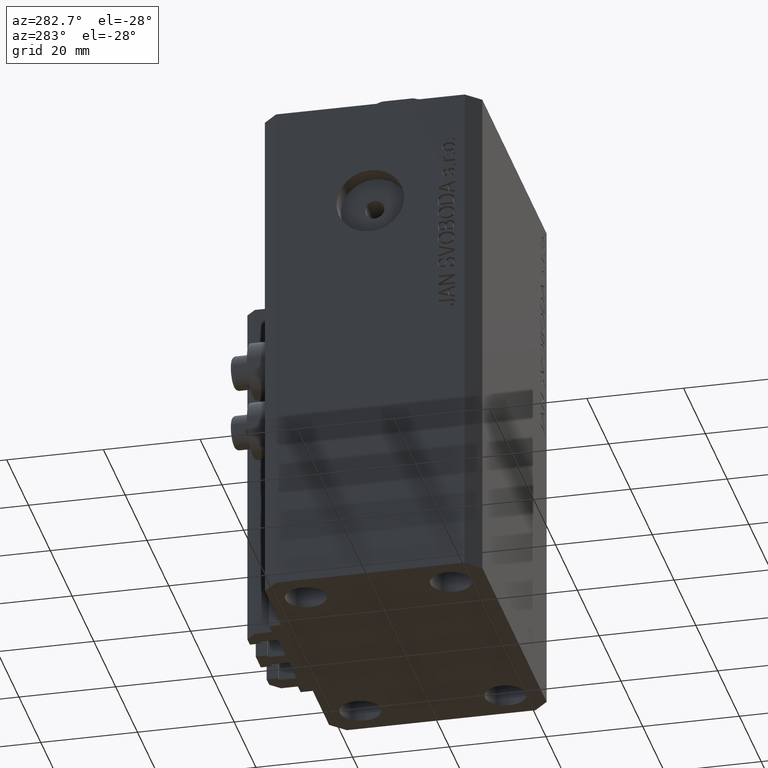
[diagram: clean part render]
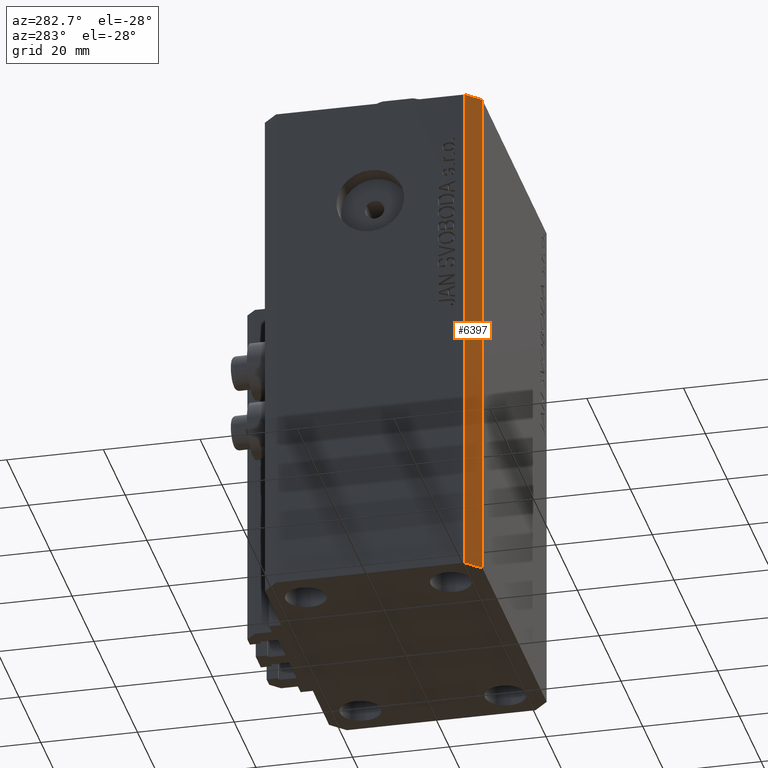
[diagram: same view with one face highlighted and labeled with its STEP entity id]
A machine part, auxiliary view. The second image highlights one B-rep face of the part: STEP entity #6397.
In plain terms, the highlighted planar face has unit normal (-0.7071, -0.7071, 0).
Its self-contained STEP definition (entity closure, byte-faithful):
#2043 = VERTEX_POINT ( 'NONE', #18155 ) ;
#3606 = VERTEX_POINT ( 'NONE', #7023 ) ;
#6008 = DIRECTION ( 'NONE',  ( 0.000000000000000000, 0.000000000000000000, 1.000000000000000000 ) ) ;
#6263 = PLANE ( 'NONE',  #13164 ) ;
#6397 = ADVANCED_FACE ( 'NONE', ( #42544 ), #6263, .T. ) ;
#7023 = CARTESIAN_POINT ( 'NONE',  ( -29.49999999999650413, -22.49999999999949907, -107.0000000000000000 ) ) ;
#7609 = VECTOR ( 'NONE', #32587, 1000.000000000000114 ) ;
#7941 = CARTESIAN_POINT ( 'NONE',  ( -32.49999999999650413, -19.49999999999949907, 0.000000000000000000 ) ) ;
#10573 = DIRECTION ( 'NONE',  ( 0.7071067811865474617, -0.7071067811865474617, 0.000000000000000000 ) ) ;
#13164 = AXIS2_PLACEMENT_3D ( 'NONE', #31810, #28230, #39444 ) ;
#13411 = CARTESIAN_POINT ( 'NONE',  ( -29.49999999999650413, -22.49999999999949907, -107.0000000000000000 ) ) ;
#13687 = ORIENTED_EDGE ( 'NONE', *, *, #45004, .F. ) ;
#18023 = LINE ( 'NONE', #35702, #7609 ) ;
#18128 = EDGE_CURVE ( 'NONE', #29222, #22956, #35725, .T. ) ;
#18155 = CARTESIAN_POINT ( 'NONE',  ( -29.49999999999650413, -22.49999999999949907, 0.000000000000000000 ) ) ;
#22956 = VERTEX_POINT ( 'NONE', #34222 ) ;
#26924 = CARTESIAN_POINT ( 'NONE',  ( -32.49999999999650413, -19.49999999999949907, -107.0000000000000000 ) ) ;
#28230 = DIRECTION ( 'NONE',  ( -0.7071067811865475727, -0.7071067811865475727, 0.000000000000000000 ) ) ;
#28863 = ORIENTED_EDGE ( 'NONE', *, *, #40230, .T. ) ;
#29211 = LINE ( 'NONE', #7941, #37429 ) ;
#29222 = VERTEX_POINT ( 'NONE', #26924 ) ;
#31810 = CARTESIAN_POINT ( 'NONE',  ( -32.49999999999650413, -19.49999999999949907, -107.0000000000000000 ) ) ;
#32587 = DIRECTION ( 'NONE',  ( 0.7071067811865474617, -0.7071067811865474617, 0.000000000000000000 ) ) ;
#33782 = EDGE_CURVE ( 'NONE', #3606, #2043, #38710, .T. ) ;
#34222 = CARTESIAN_POINT ( 'NONE',  ( -32.49999999999650413, -19.49999999999949907, 0.000000000000000000 ) ) ;
#35702 = CARTESIAN_POINT ( 'NONE',  ( -32.49999999999650413, -19.49999999999949907, -107.0000000000000000 ) ) ;
#35725 = LINE ( 'NONE', #39310, #35990 ) ;
#35990 = VECTOR ( 'NONE', #46467, 1000.000000000000000 ) ;
#37429 = VECTOR ( 'NONE', #10573, 1000.000000000000114 ) ;
#38710 = LINE ( 'NONE', #13411, #43166 ) ;
#39310 = CARTESIAN_POINT ( 'NONE',  ( -32.49999999999650413, -19.49999999999949907, -107.0000000000000000 ) ) ;
#39444 = DIRECTION ( 'NONE',  ( 0.7071067811865474617, -0.7071067811865474617, 0.000000000000000000 ) ) ;
#40230 = EDGE_CURVE ( 'NONE', #29222, #3606, #18023, .T. ) ;
#41150 = ORIENTED_EDGE ( 'NONE', *, *, #18128, .F. ) ;
#42544 = FACE_OUTER_BOUND ( 'NONE', #45864, .T. ) ;
#43166 = VECTOR ( 'NONE', #6008, 1000.000000000000000 ) ;
#44813 = ORIENTED_EDGE ( 'NONE', *, *, #33782, .T. ) ;
#45004 = EDGE_CURVE ( 'NONE', #22956, #2043, #29211, .T. ) ;
#45864 = EDGE_LOOP ( 'NONE', ( #13687, #41150, #28863, #44813 ) ) ;
#46467 = DIRECTION ( 'NONE',  ( 0.000000000000000000, 0.000000000000000000, 1.000000000000000000 ) ) ;